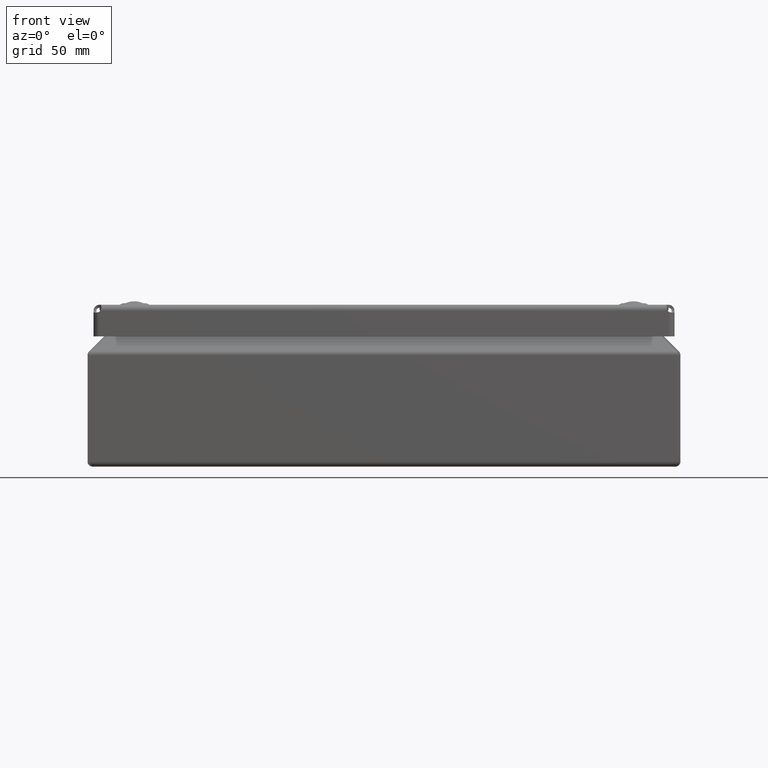
[diagram: clean part render]
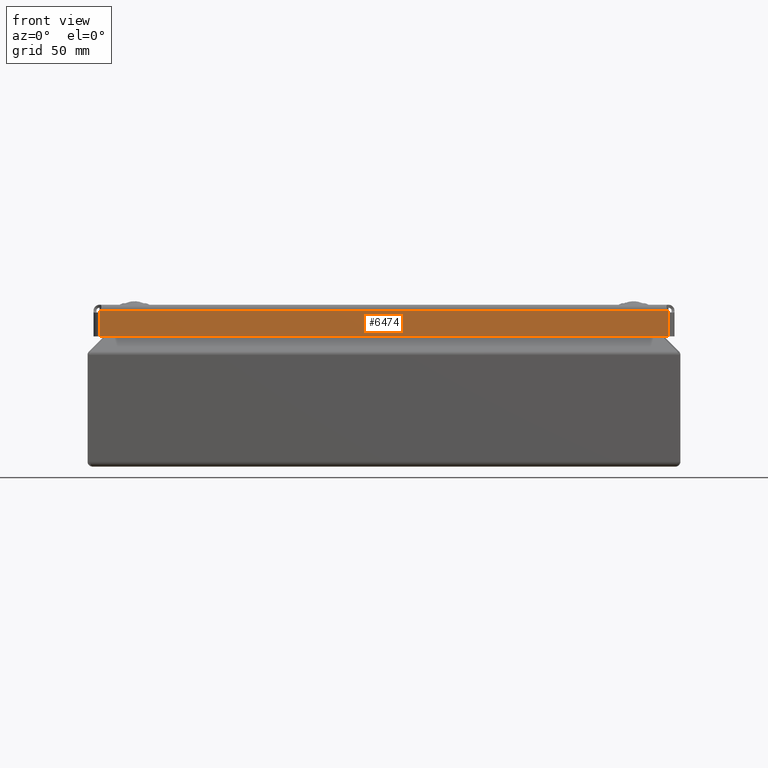
[diagram: same view with one face highlighted and labeled with its STEP entity id]
A machine part, front view. The second image highlights one B-rep face of the part: STEP entity #6474.
In plain terms, the highlighted planar face has unit normal (-0, 1, 0).
Its self-contained STEP definition (entity closure, byte-faithful):
#6343 = VERTEX_POINT ( 'NONE', #15235 ) ;
#6382 = VERTEX_POINT ( 'NONE', #15370 ) ;
#6384 = EDGE_CURVE ( 'NONE', #6388, #6382, #15372, .T. ) ;
#6388 = VERTEX_POINT ( 'NONE', #15396 ) ;
#6399 = VERTEX_POINT ( 'NONE', #15384 ) ;
#6438 = EDGE_CURVE ( 'NONE', #6388, #6343, #15482, .T. ) ;
#6444 = EDGE_CURVE ( 'NONE', #6399, #6343, #15526, .T. ) ;
#6458 = ORIENTED_EDGE ( 'NONE', *, *, #6384, .T. ) ;
#6459 = ORIENTED_EDGE ( 'NONE', *, *, #6472, .F. ) ;
#6470 = VERTEX_POINT ( 'NONE', #15673 ) ;
#6472 = EDGE_CURVE ( 'NONE', #6470, #6382, #15667, .T. ) ;
#6474 = ADVANCED_FACE ( 'NONE', ( #15663 ), #15662, .F. ) ;
#6475 = EDGE_LOOP ( 'NONE', ( #6476, #6534, #6536, #6537, #6458, #6459 ) ) ;
#6476 = ORIENTED_EDGE ( 'NONE', *, *, #6477, .F. ) ;
#6477 = EDGE_CURVE ( 'NONE', #6478, #6470, #15714, .T. ) ;
#6478 = VERTEX_POINT ( 'NONE', #15710 ) ;
#6534 = ORIENTED_EDGE ( 'NONE', *, *, #6535, .T. ) ;
#6535 = EDGE_CURVE ( 'NONE', #6478, #6399, #15808, .T. ) ;
#6536 = ORIENTED_EDGE ( 'NONE', *, *, #6444, .T. ) ;
#6537 = ORIENTED_EDGE ( 'NONE', *, *, #6438, .F. ) ;
#15235 = CARTESIAN_POINT ( 'NONE',  ( -143.9999999999999700, 96.99999999999994300, 15.99999999999989000 ) ) ;
#15361 = DIRECTION ( 'NONE',  ( -1.301042606982609800E-016, 3.491483361109382100E-015, -1.000000000000000000 ) ) ;
#15362 = VECTOR ( 'NONE', #15361, 1000.000000000000000 ) ;
#15363 = CARTESIAN_POINT ( 'NONE',  ( 143.9999999999999400, 97.00000000000075300, -204.0000000000000300 ) ) ;
#15370 = CARTESIAN_POINT ( 'NONE',  ( 144.0000000000000600, 97.00000000000002800, 3.499999999999905900 ) ) ;
#15372 = LINE ( 'NONE', #15363, #15362 ) ;
#15384 = CARTESIAN_POINT ( 'NONE',  ( -144.0000000000000000, 96.99999999999998600, 3.499999999999975100 ) ) ;
#15396 = CARTESIAN_POINT ( 'NONE',  ( 144.0000000000000000, 96.99999999999998600, 15.99999999999993100 ) ) ;
#15481 = CARTESIAN_POINT ( 'NONE',  ( -160.0000000000000000, 96.99999999999994300, 15.99999999999993100 ) ) ;
#15482 = LINE ( 'NONE', #15481, #15534 ) ;
#15523 = DIRECTION ( 'NONE',  ( 1.301042606982609800E-016, -3.491483361109382100E-015, 1.000000000000000000 ) ) ;
#15524 = VECTOR ( 'NONE', #15523, 1000.000000000000000 ) ;
#15525 = CARTESIAN_POINT ( 'NONE',  ( -144.0000000000000300, 97.00000000000071100, -203.9999999999999700 ) ) ;
#15526 = LINE ( 'NONE', #15525, #15524 ) ;
#15533 = DIRECTION ( 'NONE',  ( -1.000000000000000000, -1.301042606982605300E-016, 2.465190328815661900E-032 ) ) ;
#15534 = VECTOR ( 'NONE', #15533, 1000.000000000000000 ) ;
#15662 = PLANE ( 'NONE',  #15718 ) ;
#15663 = FACE_OUTER_BOUND ( 'NONE', #6475, .T. ) ;
#15664 = DIRECTION ( 'NONE',  ( -1.000000000000000000, 0.0000000000000000000, 1.734723475976786100E-016 ) ) ;
#15665 = DIRECTION ( 'NONE',  ( -1.301042606982605300E-016, 1.000000000000000000, 3.491483361109382100E-015 ) ) ;
#15666 = AXIS2_PLACEMENT_3D ( 'NONE', #15675, #15665, #15664 ) ;
#15667 = CIRCLE ( 'NONE', #15666, 2.500000000000030200 ) ;
#15673 = CARTESIAN_POINT ( 'NONE',  ( 143.5000000000000900, 97.00000000000002800, 3.000000000000030200 ) ) ;
#15675 = CARTESIAN_POINT ( 'NONE',  ( 145.5000000000000900, 97.00000000000002800, 1.499999999999987600 ) ) ;
#15710 = CARTESIAN_POINT ( 'NONE',  ( -143.4999999999999700, 96.99999999999998600, 2.999999999999992500 ) ) ;
#15711 = DIRECTION ( 'NONE',  ( 1.000000000000000000, 1.301042606982604600E-016, 1.495972335554903800E-017 ) ) ;
#15712 = VECTOR ( 'NONE', #15711, 1000.000000000000000 ) ;
#15713 = CARTESIAN_POINT ( 'NONE',  ( -160.0000000000000000, 96.99999999999998600, 3.000000000000002700 ) ) ;
#15714 = LINE ( 'NONE', #15713, #15712 ) ;
#15715 = DIRECTION ( 'NONE',  ( 1.000000000000000000, 1.301042606982609800E-016, -1.301042606982605300E-016 ) ) ;
#15716 = DIRECTION ( 'NONE',  ( 1.301042606982605300E-016, -1.000000000000000000, -3.491483361109382100E-015 ) ) ;
#15717 = CARTESIAN_POINT ( 'NONE',  ( -160.0000000000000000, 97.00000000000071100, -203.9999999999999700 ) ) ;
#15718 = AXIS2_PLACEMENT_3D ( 'NONE', #15717, #15716, #15715 ) ;
#15804 = DIRECTION ( 'NONE',  ( 1.000000000000000000, 0.0000000000000000000, -1.734723475976786100E-016 ) ) ;
#15805 = DIRECTION ( 'NONE',  ( 1.301042606982605300E-016, -1.000000000000000000, -3.491483361109382100E-015 ) ) ;
#15806 = CARTESIAN_POINT ( 'NONE',  ( -145.5000000000000900, 97.00000000000000000, 1.500000000000015100 ) ) ;
#15807 = AXIS2_PLACEMENT_3D ( 'NONE', #15806, #15805, #15804 ) ;
#15808 = CIRCLE ( 'NONE', #15807, 2.500000000000030200 ) ;